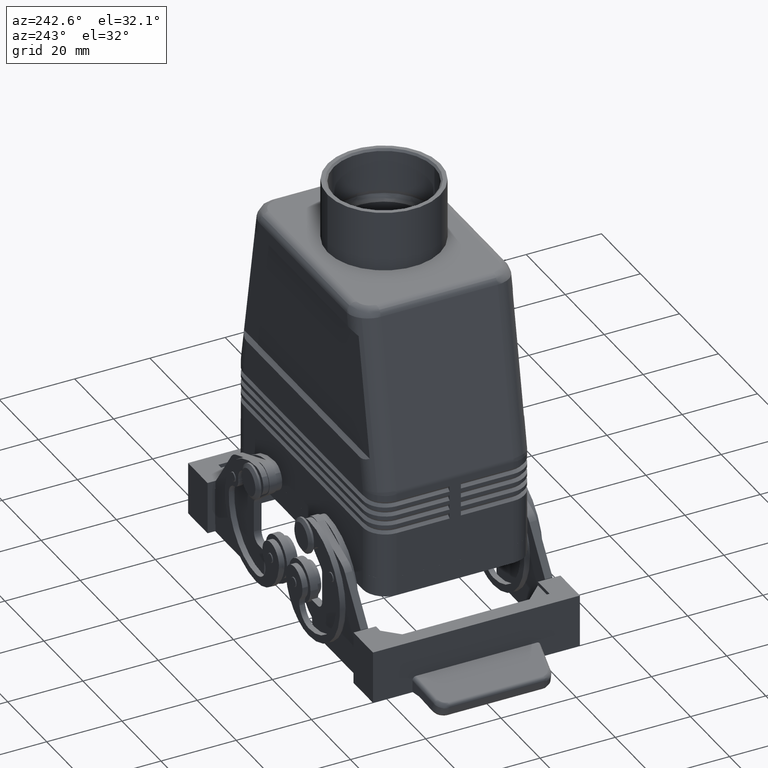
[diagram: clean part render]
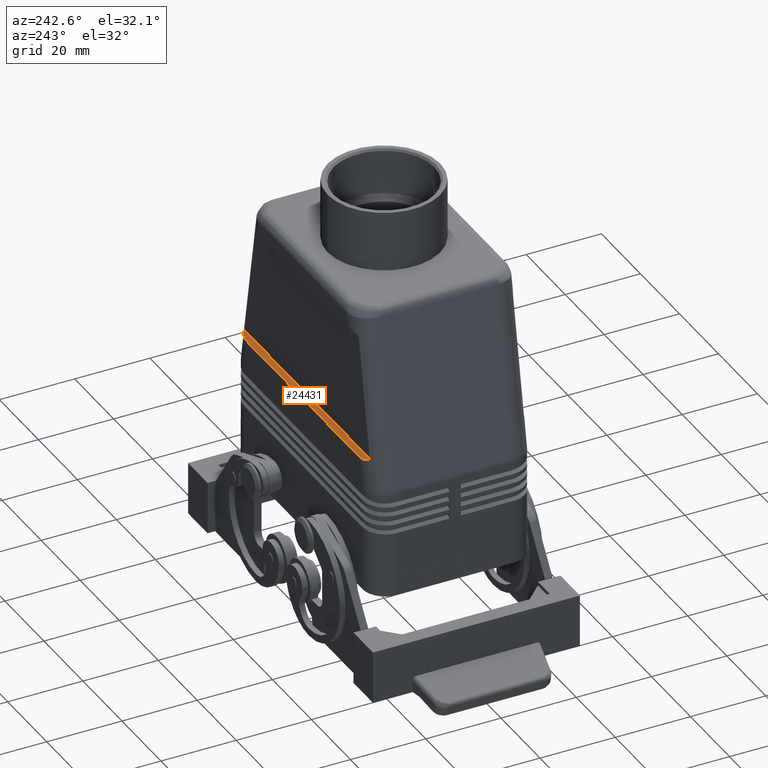
[diagram: same view with one face highlighted and labeled with its STEP entity id]
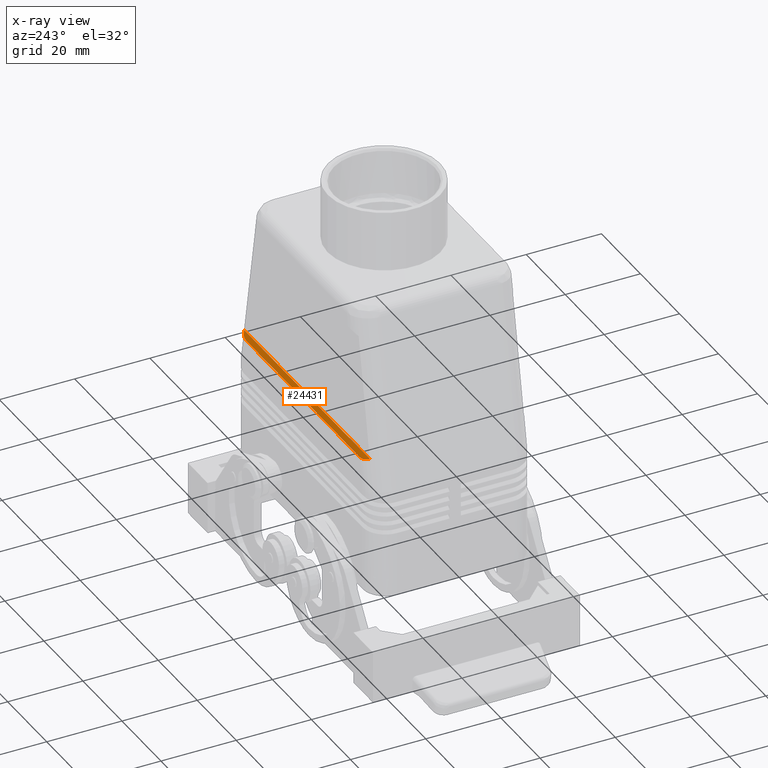
[diagram: x-ray of the same camera — body ghosted, the highlighted face saturated]
A machine part, auxiliary view. The second image highlights one B-rep face of the part: STEP entity #24431.
The next image is the same camera in x-ray: the body ghosted, the highlighted face saturated — about 0% of this face is hidden behind the body in this view.
In plain terms, the highlighted planar face has unit normal (0, -0.7071, -0.7071).
Its self-contained STEP definition (entity closure, byte-faithful):
#1640=CARTESIAN_POINT('',(-32.218398214725717,20.499999999999844,36.999999999999829));
#1641=VERTEX_POINT('',#1640);
#1648=CARTESIAN_POINT('',(-29.029613135587876,21.500000000000004,36.0));
#1649=VERTEX_POINT('',#1648);
#1650=CARTESIAN_POINT('',(-27.932838942039847,15.499999999999998,41.999999999998032));
#1651=DIRECTION('',(-1.387779E-017,-0.707106781186431,-0.707106781186664));
#1652=DIRECTION('',(-0.250284329480758,0.684601254167956,-0.684601254167731));
#1653=AXIS2_PLACEMENT_3D('',#1650,#1651,#1652);
#1654=ELLIPSE('',#1653,8.625881245602850,6.0);
#1655=EDGE_CURVE('',#1641,#1649,#1654,.T.);
#1941=CARTESIAN_POINT('',(29.029613135587876,21.500000000000004,36.0));
#1942=VERTEX_POINT('',#1941);
#1949=CARTESIAN_POINT('',(32.218398214725717,20.499999999999844,36.999999999999829));
#1950=VERTEX_POINT('',#1949);
#1951=CARTESIAN_POINT('',(27.932838942039847,15.499999999999998,41.999999999998032));
#1952=DIRECTION('',(1.387779E-017,-0.707106781186431,-0.707106781186664));
#1953=DIRECTION('',(0.250284329480758,0.684601254167956,-0.684601254167731));
#1954=AXIS2_PLACEMENT_3D('',#1951,#1952,#1953);
#1955=ELLIPSE('',#1954,8.625881245602850,6.0);
#1956=EDGE_CURVE('',#1942,#1950,#1955,.T.);
#20407=CARTESIAN_POINT('',(-29.029613135587876,21.500000000000004,36.0));
#20408=DIRECTION('',(1.0,0.0,0.0));
#20409=VECTOR('',#20408,58.059226271175753);
#20410=LINE('',#20407,#20409);
#20411=EDGE_CURVE('',#1649,#1942,#20410,.T.);
#24387=CARTESIAN_POINT('',(-32.218398214725717,20.499999999999844,36.999999999999829));
#24388=DIRECTION('',(1.0,0.0,0.0));
#24389=VECTOR('',#24388,64.436796429451434);
#24390=LINE('',#24387,#24389);
#24391=EDGE_CURVE('',#1641,#1950,#24390,.T.);
#24420=CARTESIAN_POINT('',(0.0,21.500000000000004,36.0));
#24421=DIRECTION('',(0.0,-0.707106781186431,-0.707106781186664));
#24422=DIRECTION('',(-1.0,0.0,0.0));
#24423=AXIS2_PLACEMENT_3D('',#24420,#24421,#24422);
#24424=PLANE('',#24423);
#24425=ORIENTED_EDGE('',*,*,#1956,.F.);
#24426=ORIENTED_EDGE('',*,*,#20411,.F.);
#24427=ORIENTED_EDGE('',*,*,#1655,.F.);
#24428=ORIENTED_EDGE('',*,*,#24391,.T.);
#24429=EDGE_LOOP('',(#24425,#24426,#24427,#24428));
#24430=FACE_OUTER_BOUND('',#24429,.T.);
#24431=ADVANCED_FACE('',(#24430),#24424,.F.);